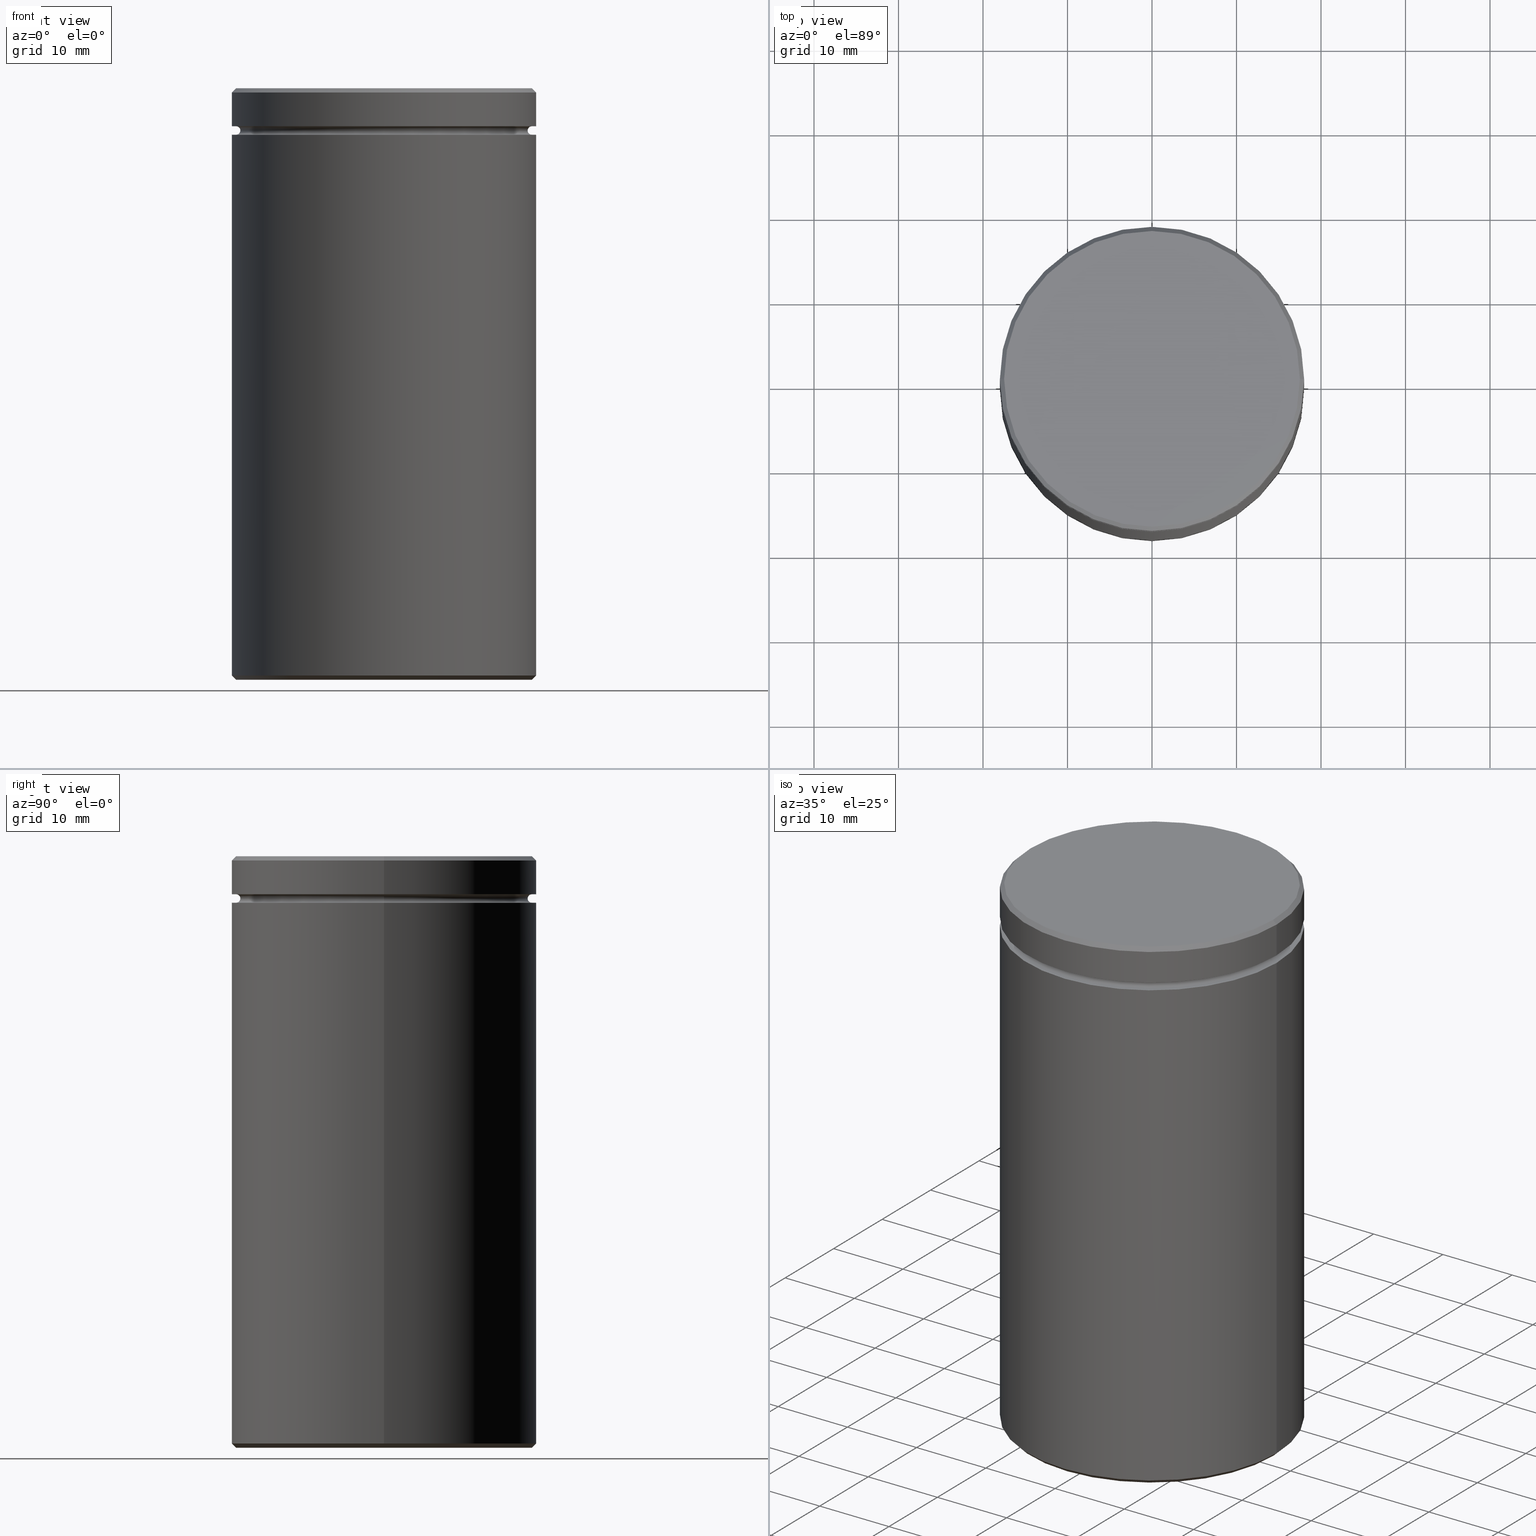
[diagram: canonical four-view strip — front | top / right | iso, engineering-drawing reading convention]
A machine part, canonical four-view strip (front | top / right | iso — engineering-drawing reading convention). The complete STEP part file that produces these views, byte-faithful:
ISO-10303-21;
HEADER;
FILE_DESCRIPTION (( 'STEP AP203' ),
    '1' );
FILE_NAME ('981e.STEP',
    '2024-01-02T17:57:33',
    ( '' ),
    ( '' ),
    'SwSTEP 2.0',
    'SolidWorks 2019',
    '' );
FILE_SCHEMA (( 'CONFIG_CONTROL_DESIGN' ));
ENDSEC;

DATA;
#1 = ORIENTED_EDGE ( 'NONE', *, *, #238, .F. ) ;
#2 = EDGE_LOOP ( 'NONE', ( #20, #502, #546, #164 ) ) ;
#3 = EDGE_CURVE ( 'NONE', #135, #175, #155, .T. ) ;
#4 = CARTESIAN_POINT ( 'NONE',  ( 0.000000000000000000, 0.000000000000000000, -24.00000000000000711 ) ) ;
#5 = CALENDAR_DATE ( 2024, 2, 1 ) ;
#6 = ORIENTED_EDGE ( 'NONE', *, *, #153, .F. ) ;
#7 = CARTESIAN_POINT ( 'NONE',  ( 18.00000000000000000, 0.000000000000000000, -5.500000000000000000 ) ) ;
#8 = CIRCLE ( 'NONE', #511, 12.00000000000000178 ) ;
#9 = APPLICATION_PROTOCOL_DEFINITION ( 'international standard', 'config_control_design', 1994, #12 ) ;
#10 = APPROVAL_PERSON_ORGANIZATION ( #312, #358, #51 ) ;
#11 = PRODUCT ( '981e', '981e', '', ( #533 ) ) ;
#12 = APPLICATION_CONTEXT ( 'configuration controlled 3d designs of mechanical parts and assemblies' ) ;
#13 = ORIENTED_EDGE ( 'NONE', *, *, #373, .F. ) ;
#14 = ORIENTED_EDGE ( 'NONE', *, *, #289, .T. ) ;
#15 = CYLINDRICAL_SURFACE ( 'NONE', #127, 18.00000000000000000 ) ;
#16 = ORIENTED_EDGE ( 'NONE', *, *, #125, .T. ) ;
#17 = FACE_OUTER_BOUND ( 'NONE', #2, .T. ) ;
#18 = EDGE_CURVE ( 'NONE', #568, #175, #247, .T. ) ;
#19 = LINE ( 'NONE', #196, #37 ) ;
#20 = ORIENTED_EDGE ( 'NONE', *, *, #41, .F. ) ;
#21 = AXIS2_PLACEMENT_3D ( 'NONE', #180, #500, #244 ) ;
#22 = APPROVAL_PERSON_ORGANIZATION ( #526, #448, #133 ) ;
#23 = VERTEX_POINT ( 'NONE', #239 ) ;
#24 = CARTESIAN_POINT ( 'NONE',  ( -18.00000000000000000, 2.204364238465235428E-15, -69.50000000000001421 ) ) ;
#25 = ADVANCED_FACE ( 'NONE', ( #415 ), #15, .T. ) ;
#26 = UNCERTAINTY_MEASURE_WITH_UNIT (LENGTH_MEASURE( 1.000000000000000082E-05 ), #435, 'distance_accuracy_value', 'NONE');
#27 = EDGE_LOOP ( 'NONE', ( #321, #308, #227, #87 ) ) ;
#28 = CARTESIAN_POINT ( 'NONE',  ( 0.000000000000000000, 18.00000000000000000, -4.500000000000000888 ) ) ;
#29 = CONICAL_SURFACE ( 'NONE', #231, 17.49999999999998934, 0.7853981633974412846 ) ;
#30 = CONICAL_SURFACE ( 'NONE', #347, 17.49999999999998934, 0.7853981633974412846 ) ;
#31 = ORIENTED_EDGE ( 'NONE', *, *, #289, .F. ) ;
#32 = CARTESIAN_POINT ( 'NONE',  ( 0.000000000000000000, 0.000000000000000000, -69.50000000000001421 ) ) ;
#33 = CARTESIAN_POINT ( 'NONE',  ( 18.00000000000000000, 0.000000000000000000, -69.50000000000001421 ) ) ;
#34 = EDGE_CURVE ( 'NONE', #267, #459, #45, .T. ) ;
#35 = CARTESIAN_POINT ( 'NONE',  ( 16.99999999999999645, 0.000000000000000000, -4.999999999999999112 ) ) ;
#36 = LINE ( 'NONE', #468, #105 ) ;
#37 = VECTOR ( 'NONE', #256, 1000.000000000000000 ) ;
#38 =( GEOMETRIC_REPRESENTATION_CONTEXT ( 3 ) GLOBAL_UNCERTAINTY_ASSIGNED_CONTEXT ( ( #26 ) ) GLOBAL_UNIT_ASSIGNED_CONTEXT ( ( #435, #47, #444 ) ) REPRESENTATION_CONTEXT ( 'NONE', 'WORKASPACE' ) );
#39 = CARTESIAN_POINT ( 'NONE',  ( -18.00000000000000000, 2.204364238465235428E-15, -4.500000000000000888 ) ) ;
#40 = APPROVAL_DATE_TIME ( #357, #358 ) ;
#41 = EDGE_CURVE ( 'NONE', #367, #400, #541, .T. ) ;
#42 = CARTESIAN_POINT ( 'NONE',  ( 0.000000000000000000, 0.000000000000000000, -24.00000000000000711 ) ) ;
#43 = PERSON_AND_ORGANIZATION ( #291, #495 ) ;
#44 = CARTESIAN_POINT ( 'NONE',  ( 0.000000000000000000, 0.000000000000000000, -4.500000000000000888 ) ) ;
#45 = CIRCLE ( 'NONE', #369, 12.00000000000000178 ) ;
#46 = CIRCLE ( 'NONE', #420, 17.49999999999999645 ) ;
#47 =( NAMED_UNIT ( * ) PLANE_ANGLE_UNIT ( ) SI_UNIT ( $, .RADIAN. ) );
#48 = DIRECTION ( 'NONE',  ( -1.000000000000000000, 0.000000000000000000, 0.000000000000000000 ) ) ;
#49 = EDGE_CURVE ( 'NONE', #405, #267, #530, .T. ) ;
#50 = CARTESIAN_POINT ( 'NONE',  ( 0.000000000000000000, 0.000000000000000000, 0.000000000000000000 ) ) ;
#51 = APPROVAL_ROLE ( '' ) ;
#52 = CARTESIAN_POINT ( 'NONE',  ( 17.49999999999999645, 0.000000000000000000, -4.999999999999999112 ) ) ;
#53 = DIRECTION ( 'NONE',  ( 0.000000000000000000, 0.000000000000000000, -1.000000000000000000 ) ) ;
#54 = DATE_AND_TIME ( #317, #413 ) ;
#55 = ORIENTED_EDGE ( 'NONE', *, *, #191, .F. ) ;
#56 = DIRECTION ( 'NONE',  ( -0.000000000000000000, -0.000000000000000000, 1.000000000000000000 ) ) ;
#57 = AXIS2_PLACEMENT_3D ( 'NONE', #483, #226, #356 ) ;
#58 = DIRECTION ( 'NONE',  ( -1.000000000000000000, 0.000000000000000000, 0.000000000000000000 ) ) ;
#59 = ORIENTED_EDGE ( 'NONE', *, *, #327, .F. ) ;
#60 = ADVANCED_FACE ( 'NONE', ( #316 ), #411, .F. ) ;
#61 = FACE_OUTER_BOUND ( 'NONE', #446, .T. ) ;
#62 = FACE_OUTER_BOUND ( 'NONE', #536, .T. ) ;
#63 = CARTESIAN_POINT ( 'NONE',  ( -18.00000000000000000, 2.204364238465235428E-15, 0.000000000000000000 ) ) ;
#64 = AXIS2_PLACEMENT_3D ( 'NONE', #130, #86, #566 ) ;
#65 = APPROVAL_PERSON_ORGANIZATION ( #390, #455, #88 ) ;
#66 = EDGE_CURVE ( 'NONE', #479, #102, #90, .T. ) ;
#67 = DIRECTION ( 'NONE',  ( 0.000000000000000000, 0.000000000000000000, -1.000000000000000000 ) ) ;
#68 = PLANE ( 'NONE',  #550 ) ;
#69 = EDGE_LOOP ( 'NONE', ( #319, #482 ) ) ;
#70 = FACE_OUTER_BOUND ( 'NONE', #330, .T. ) ;
#71 = EDGE_LOOP ( 'NONE', ( #364, #207, #275, #554 ) ) ;
#72 = PLANE ( 'NONE',  #393 ) ;
#73 = CC_DESIGN_DATE_AND_TIME_ASSIGNMENT ( #399, #190, ( #220 ) ) ;
#74 = CIRCLE ( 'NONE', #359, 18.00000000000000000 ) ;
#75 = LOCAL_TIME ( 18, 57, 33.00000000000000000, #354 ) ;
#76 = DIRECTION ( 'NONE',  ( 1.000000000000000000, 0.000000000000000000, 0.000000000000000000 ) ) ;
#77 = ORIENTED_EDGE ( 'NONE', *, *, #18, .T. ) ;
#78 = DIRECTION ( 'NONE',  ( -0.000000000000000000, -0.000000000000000000, 1.000000000000000000 ) ) ;
#79 = ORIENTED_EDGE ( 'NONE', *, *, #366, .T. ) ;
#80 = DIRECTION ( 'NONE',  ( 1.000000000000000000, 0.000000000000000000, 0.000000000000000000 ) ) ;
#81 = CIRCLE ( 'NONE', #376, 0.5000000000000004441 ) ;
#82 = DIRECTION ( 'NONE',  ( 0.000000000000000000, 0.000000000000000000, -1.000000000000000000 ) ) ;
#83 = ADVANCED_FACE ( 'NONE', ( #404 ), #525, .T. ) ;
#84 = LINE ( 'NONE', #33, #532 ) ;
#85 = CYLINDRICAL_SURFACE ( 'NONE', #214, 12.00000000000000178 ) ;
#86 = DIRECTION ( 'NONE',  ( -0.000000000000000000, -1.000000000000000000, -0.000000000000000000 ) ) ;
#87 = ORIENTED_EDGE ( 'NONE', *, *, #313, .F. ) ;
#88 = APPROVAL_ROLE ( '' ) ;
#89 = EDGE_CURVE ( 'NONE', #479, #437, #349, .T. ) ;
#90 = CIRCLE ( 'NONE', #170, 0.5000000000000004441 ) ;
#91 = AXIS2_PLACEMENT_3D ( 'NONE', #374, #381, #548 ) ;
#92 = CARTESIAN_POINT ( 'NONE',  ( 0.000000000000000000, 0.000000000000000000, -0.5000000000000177636 ) ) ;
#93 = PRODUCT_DEFINITION_FORMATION_WITH_SPECIFIED_SOURCE ( 'LIBOVOLN�', '', #11, .NOT_KNOWN. ) ;
#94 = APPROVAL_STATUS ( 'not_yet_approved' ) ;
#95 = ORIENTED_EDGE ( 'NONE', *, *, #389, .T. ) ;
#96 = DIRECTION ( 'NONE',  ( 1.000000000000000000, 0.000000000000000000, 0.000000000000000000 ) ) ;
#97 = VERTEX_POINT ( 'NONE', #243 ) ;
#98 = LINE ( 'NONE', #493, #264 ) ;
#99 = CARTESIAN_POINT ( 'NONE',  ( -17.49999999999998934, 0.000000000000000000, 0.000000000000000000 ) ) ;
#100 = VERTEX_POINT ( 'NONE', #99 ) ;
#101 = CIRCLE ( 'NONE', #419, 18.00000000000000000 ) ;
#102 = VERTEX_POINT ( 'NONE', #199 ) ;
#103 = FACE_OUTER_BOUND ( 'NONE', #187, .T. ) ;
#104 = ADVANCED_FACE ( 'NONE', ( #365, #329 ), #456, .T. ) ;
#105 = VECTOR ( 'NONE', #160, 999.9999999999998863 ) ;
#106 = DIRECTION ( 'NONE',  ( -0.000000000000000000, -0.000000000000000000, 1.000000000000000000 ) ) ;
#107 = AXIS2_PLACEMENT_3D ( 'NONE', #519, #387, #165 ) ;
#108 = DIRECTION ( 'NONE',  ( 1.000000000000000000, 0.000000000000000000, 0.000000000000000000 ) ) ;
#109 = EDGE_CURVE ( 'NONE', #559, #400, #188, .T. ) ;
#110 = CIRCLE ( 'NONE', #91, 0.5000000000000004441 ) ;
#111 = DIRECTION ( 'NONE',  ( -1.000000000000000000, 0.000000000000000000, -0.000000000000000000 ) ) ;
#112 = CYLINDRICAL_SURFACE ( 'NONE', #421, 12.00000000000000178 ) ;
#113 = ORIENTED_EDGE ( 'NONE', *, *, #299, .T. ) ;
#114 = CC_DESIGN_PERSON_AND_ORGANIZATION_ASSIGNMENT ( #186, #351, ( #220 ) ) ;
#115 = VECTOR ( 'NONE', #198, 1000.000000000000000 ) ;
#116 = DIRECTION ( 'NONE',  ( -0.000000000000000000, -0.000000000000000000, 1.000000000000000000 ) ) ;
#117 = VECTOR ( 'NONE', #295, 1000.000000000000000 ) ;
#118 = VERTEX_POINT ( 'NONE', #383 ) ;
#119 = DIRECTION ( 'NONE',  ( -0.000000000000000000, -0.000000000000000000, 1.000000000000000000 ) ) ;
#120 = CARTESIAN_POINT ( 'NONE',  ( 18.00000000000000000, 0.000000000000000000, -69.50000000000001421 ) ) ;
#121 = ORIENTED_EDGE ( 'NONE', *, *, #66, .T. ) ;
#122 = CARTESIAN_POINT ( 'NONE',  ( 0.000000000000000000, 0.000000000000000000, -5.500000000000000000 ) ) ;
#123 = ORIENTED_EDGE ( 'NONE', *, *, #373, .T. ) ;
#124 = DIRECTION ( 'NONE',  ( -1.000000000000000000, 0.000000000000000000, 0.000000000000000000 ) ) ;
#125 = EDGE_CURVE ( 'NONE', #400, #559, #74, .T. ) ;
#126 = CARTESIAN_POINT ( 'NONE',  ( 12.00000000000000178, 1.469576158976824144E-15, -24.00000000000000711 ) ) ;
#127 = AXIS2_PLACEMENT_3D ( 'NONE', #371, #106, #108 ) ;
#128 = CIRCLE ( 'NONE', #332, 17.49999999999998934 ) ;
#129 = AXIS2_PLACEMENT_3D ( 'NONE', #345, #116, #470 ) ;
#130 = CARTESIAN_POINT ( 'NONE',  ( -17.49999999999999645, 0.000000000000000000, -5.000000000000000888 ) ) ;
#131 = VERTEX_POINT ( 'NONE', #560 ) ;
#132 = ADVANCED_FACE ( 'NONE', ( #422 ), #253, .F. ) ;
#133 = APPROVAL_ROLE ( '' ) ;
#134 = DIRECTION ( 'NONE',  ( -1.000000000000000000, -1.224646799147349509E-16, 0.000000000000000000 ) ) ;
#135 = VERTEX_POINT ( 'NONE', #343 ) ;
#136 = DIRECTION ( 'NONE',  ( 1.000000000000000000, 0.000000000000000000, 0.000000000000000000 ) ) ;
#137 = DATE_AND_TIME ( #230, #75 ) ;
#138 = CARTESIAN_POINT ( 'NONE',  ( 0.000000000000000000, 0.000000000000000000, -24.00000000000000711 ) ) ;
#139 = AXIS2_PLACEMENT_3D ( 'NONE', #512, #174, #124 ) ;
#140 = DIRECTION ( 'NONE',  ( -0.000000000000000000, -0.000000000000000000, -1.000000000000000000 ) ) ;
#141 = EDGE_LOOP ( 'NONE', ( #13, #486, #121, #391 ) ) ;
#142 = EDGE_LOOP ( 'NONE', ( #184, #236 ) ) ;
#143 = APPROVAL_DATE_TIME ( #310, #448 ) ;
#144 = CARTESIAN_POINT ( 'NONE',  ( 17.49999999999998934, 2.173748068486550852E-15, 0.000000000000000000 ) ) ;
#145 = ORIENTED_EDGE ( 'NONE', *, *, #407, .T. ) ;
#146 = ADVANCED_FACE ( 'NONE', ( #70 ), #29, .T. ) ;
#147 = EDGE_LOOP ( 'NONE', ( #451, #309, #423, #235 ) ) ;
#148 = CARTESIAN_POINT ( 'NONE',  ( -18.00000000000000000, 2.204364238465235428E-15, -69.50000000000001421 ) ) ;
#149 = AXIS2_PLACEMENT_3D ( 'NONE', #92, #224, #410 ) ;
#150 = AXIS2_PLACEMENT_3D ( 'NONE', #424, #379, #514 ) ;
#151 = DIRECTION ( 'NONE',  ( 0.000000000000000000, 0.000000000000000000, -1.000000000000000000 ) ) ;
#152 = CARTESIAN_POINT ( 'NONE',  ( -17.50000000000000000, 2.173748068486551641E-15, -70.00000000000000000 ) ) ;
#153 = EDGE_CURVE ( 'NONE', #175, #135, #392, .T. ) ;
#154 = DIRECTION ( 'NONE',  ( 0.000000000000000000, 0.000000000000000000, -1.000000000000000000 ) ) ;
#155 = CIRCLE ( 'NONE', #240, 18.00000000000000000 ) ;
#156 = VECTOR ( 'NONE', #183, 1000.000000000000000 ) ;
#157 = CARTESIAN_POINT ( 'NONE',  ( 0.000000000000000000, 0.000000000000000000, -69.50000000000001421 ) ) ;
#158 = EDGE_LOOP ( 'NONE', ( #440, #113, #14, #537 ) ) ;
#159 = DIRECTION ( 'NONE',  ( 0.000000000000000000, 0.000000000000000000, -1.000000000000000000 ) ) ;
#160 = DIRECTION ( 'NONE',  ( -0.7071067811865425767, 0.000000000000000000, -0.7071067811865525687 ) ) ;
#161 = ORIENTED_EDGE ( 'NONE', *, *, #489, .T. ) ;
#162 = EDGE_CURVE ( 'NONE', #405, #262, #484, .T. ) ;
#163 = CARTESIAN_POINT ( 'NONE',  ( 0.000000000000000000, 0.000000000000000000, 0.000000000000000000 ) ) ;
#164 = ORIENTED_EDGE ( 'NONE', *, *, #125, .F. ) ;
#165 = DIRECTION ( 'NONE',  ( 1.000000000000000000, 0.000000000000000000, 0.000000000000000000 ) ) ;
#166 = DIRECTION ( 'NONE',  ( -0.000000000000000000, -0.000000000000000000, 1.000000000000000000 ) ) ;
#167 = CARTESIAN_POINT ( 'NONE',  ( -18.00000000000000000, 2.204364238465235428E-15, 0.000000000000000000 ) ) ;
#168 = VERTEX_POINT ( 'NONE', #144 ) ;
#169 = DIRECTION ( 'NONE',  ( 1.000000000000000000, 0.000000000000000000, 0.000000000000000000 ) ) ;
#170 = AXIS2_PLACEMENT_3D ( 'NONE', #52, #380, #251 ) ;
#171 = CARTESIAN_POINT ( 'NONE',  ( 0.000000000000000000, 0.000000000000000000, -0.5000000000000177636 ) ) ;
#172 = FACE_OUTER_BOUND ( 'NONE', #252, .T. ) ;
#173 = ADVANCED_FACE ( 'NONE', ( #498, #62 ), #68, .T. ) ;
#174 = DIRECTION ( 'NONE',  ( -0.000000000000000000, -0.000000000000000000, 1.000000000000000000 ) ) ;
#175 = VERTEX_POINT ( 'NONE', #438 ) ;
#176 = ORIENTED_EDGE ( 'NONE', *, *, #481, .F. ) ;
#177 = FACE_OUTER_BOUND ( 'NONE', #531, .T. ) ;
#178 = DIRECTION ( 'NONE',  ( 0.000000000000000000, 0.000000000000000000, -1.000000000000000000 ) ) ;
#179 = CIRCLE ( 'NONE', #139, 17.49999999999999645 ) ;
#180 = CARTESIAN_POINT ( 'NONE',  ( 0.000000000000000000, 0.000000000000000000, -5.500000000000000000 ) ) ;
#181 = DIRECTION ( 'NONE',  ( 1.000000000000000000, 0.000000000000000000, 0.000000000000000000 ) ) ;
#182 = ORIENTED_EDGE ( 'NONE', *, *, #481, .T. ) ;
#183 = DIRECTION ( 'NONE',  ( -0.000000000000000000, -0.000000000000000000, 1.000000000000000000 ) ) ;
#184 = ORIENTED_EDGE ( 'NONE', *, *, #564, .T. ) ;
#185 = CYLINDRICAL_SURFACE ( 'NONE', #557, 18.00000000000000000 ) ;
#186 = PERSON_AND_ORGANIZATION ( #291, #495 ) ;
#187 = EDGE_LOOP ( 'NONE', ( #222, #77, #397, #59 ) ) ;
#188 = CIRCLE ( 'NONE', #473, 18.00000000000000000 ) ;
#189 = EDGE_LOOP ( 'NONE', ( #290, #443 ) ) ;
#190 = DATE_TIME_ROLE ( 'creation_date' ) ;
#191 = EDGE_CURVE ( 'NONE', #168, #135, #98, .T. ) ;
#192 = ORIENTED_EDGE ( 'NONE', *, *, #204, .T. ) ;
#193 = VECTOR ( 'NONE', #140, 1000.000000000000000 ) ;
#194 = CC_DESIGN_PERSON_AND_ORGANIZATION_ASSIGNMENT ( #43, #223, ( #11 ) ) ;
#195 = CIRCLE ( 'NONE', #278, 17.50000000000000000 ) ;
#196 = CARTESIAN_POINT ( 'NONE',  ( 18.00000000000000000, 0.000000000000000000, 0.000000000000000000 ) ) ;
#197 = AXIS2_PLACEMENT_3D ( 'NONE', #428, #562, #211 ) ;
#198 = DIRECTION ( 'NONE',  ( -0.7071067811865549002, 8.659560562355022838E-17, 0.7071067811865401342 ) ) ;
#199 = CARTESIAN_POINT ( 'NONE',  ( 17.49999999999999645, 0.000000000000000000, -5.500000000000000000 ) ) ;
#200 = CARTESIAN_POINT ( 'NONE',  ( -12.00000000000000178, 0.000000000000000000, -24.00000000000000711 ) ) ;
#201 = ORIENTED_EDGE ( 'NONE', *, *, #3, .T. ) ;
#202 = CIRCLE ( 'NONE', #370, 12.00000000000000178 ) ;
#203 = DIRECTION ( 'NONE',  ( 0.000000000000000000, 0.000000000000000000, -1.000000000000000000 ) ) ;
#204 = EDGE_CURVE ( 'NONE', #559, #205, #395, .T. ) ;
#205 = VERTEX_POINT ( 'NONE', #7 ) ;
#206 = CARTESIAN_POINT ( 'NONE',  ( 0.000000000000000000, 18.00000000000000000, -70.00000000000000000 ) ) ;
#207 = ORIENTED_EDGE ( 'NONE', *, *, #41, .T. ) ;
#208 = APPLICATION_CONTEXT ( 'configuration controlled 3d designs of mechanical parts and assemblies' ) ;
#209 = ADVANCED_BREP_SHAPE_REPRESENTATION ( '981e', ( #333, #254 ), #38 ) ;
#210 = ORIENTED_EDGE ( 'NONE', *, *, #162, .F. ) ;
#211 = DIRECTION ( 'NONE',  ( 1.000000000000000000, 0.000000000000000000, 0.000000000000000000 ) ) ;
#212 = ADVANCED_FACE ( 'NONE', ( #17 ), #296, .T. ) ;
#213 = FACE_OUTER_BOUND ( 'NONE', #271, .T. ) ;
#214 = AXIS2_PLACEMENT_3D ( 'NONE', #42, #217, #285 ) ;
#215 = DIRECTION ( 'NONE',  ( -1.000000000000000000, 0.000000000000000000, 0.000000000000000000 ) ) ;
#216 = SHAPE_DEFINITION_REPRESENTATION ( #496, #209 ) ;
#217 = DIRECTION ( 'NONE',  ( -0.000000000000000000, -0.000000000000000000, -1.000000000000000000 ) ) ;
#218 = CARTESIAN_POINT ( 'NONE',  ( 0.000000000000000000, 0.000000000000000000, 0.000000000000000000 ) ) ;
#219 = TOROIDAL_SURFACE ( 'NONE', #431, 17.49999999999999645, 0.5000000000000000000 ) ;
#220 = PRODUCT_DEFINITION ( 'NEZN�M�', '', #93, #284 ) ;
#221 = LOCAL_TIME ( 18, 57, 33.00000000000000000, #539 ) ;
#222 = ORIENTED_EDGE ( 'NONE', *, *, #497, .T. ) ;
#223 = PERSON_AND_ORGANIZATION_ROLE ( 'design_owner' ) ;
#224 = DIRECTION ( 'NONE',  ( 0.000000000000000000, 0.000000000000000000, -1.000000000000000000 ) ) ;
#225 = ORIENTED_EDGE ( 'NONE', *, *, #549, .T. ) ;
#226 = DIRECTION ( 'NONE',  ( -0.000000000000000000, -0.000000000000000000, 1.000000000000000000 ) ) ;
#227 = ORIENTED_EDGE ( 'NONE', *, *, #249, .F. ) ;
#228 = DIRECTION ( 'NONE',  ( -1.000000000000000000, 0.000000000000000000, 0.000000000000000000 ) ) ;
#229 = ADVANCED_FACE ( 'NONE', ( #103 ), #185, .T. ) ;
#230 = CALENDAR_DATE ( 2024, 2, 1 ) ;
#231 = AXIS2_PLACEMENT_3D ( 'NONE', #163, #246, #215 ) ;
#232 = CARTESIAN_POINT ( 'NONE',  ( -12.00000000000000178, 0.000000000000000000, -24.00000000000000711 ) ) ;
#233 = ORIENTED_EDGE ( 'NONE', *, *, #299, .F. ) ;
#234 = CARTESIAN_POINT ( 'NONE',  ( 12.00000000000000178, 1.469576158976824144E-15, -24.00000000000000711 ) ) ;
#235 = ORIENTED_EDGE ( 'NONE', *, *, #204, .F. ) ;
#236 = ORIENTED_EDGE ( 'NONE', *, *, #542, .T. ) ;
#237 = DIRECTION ( 'NONE',  ( 1.000000000000000000, 0.000000000000000000, 0.000000000000000000 ) ) ;
#238 = EDGE_CURVE ( 'NONE', #437, #479, #501, .T. ) ;
#239 = CARTESIAN_POINT ( 'NONE',  ( -17.49999999999999645, 2.143131898507867854E-15, -5.500000000000000000 ) ) ;
#240 = AXIS2_PLACEMENT_3D ( 'NONE', #171, #178, #521 ) ;
#241 = AXIS2_PLACEMENT_3D ( 'NONE', #352, #276, #441 ) ;
#242 = CIRCLE ( 'NONE', #439, 18.00000000000000000 ) ;
#243 = CARTESIAN_POINT ( 'NONE',  ( 17.49999999999999645, 2.143131898507867854E-15, -4.500000000000000888 ) ) ;
#244 = DIRECTION ( 'NONE',  ( 1.000000000000000000, 0.000000000000000000, 0.000000000000000000 ) ) ;
#245 = DIRECTION ( 'NONE',  ( -0.000000000000000000, -0.000000000000000000, 1.000000000000000000 ) ) ;
#246 = DIRECTION ( 'NONE',  ( 0.000000000000000000, 0.000000000000000000, -1.000000000000000000 ) ) ;
#247 = LINE ( 'NONE', #63, #337 ) ;
#248 = DIRECTION ( 'NONE',  ( 0.000000000000000000, 0.000000000000000000, -1.000000000000000000 ) ) ;
#249 = EDGE_CURVE ( 'NONE', #527, #97, #465, .T. ) ;
#250 = CARTESIAN_POINT ( 'NONE',  ( 0.000000000000000000, 16.99999999999999645, -5.500000000000000000 ) ) ;
#251 = DIRECTION ( 'NONE',  ( 0.000000000000000000, 0.000000000000000000, -1.000000000000000000 ) ) ;
#252 = EDGE_LOOP ( 'NONE', ( #416, #79, #384, #201 ) ) ;
#253 = TOROIDAL_SURFACE ( 'NONE', #449, 17.49999999999999645, 0.5000000000000000000 ) ;
#254 = AXIS2_PLACEMENT_3D ( 'NONE', #218, #402, #181 ) ;
#255 = DIRECTION ( 'NONE',  ( 1.000000000000000000, 0.000000000000000000, 0.000000000000000000 ) ) ;
#256 = DIRECTION ( 'NONE',  ( -0.000000000000000000, -0.000000000000000000, 1.000000000000000000 ) ) ;
#257 = ORIENTED_EDGE ( 'NONE', *, *, #549, .F. ) ;
#258 = CARTESIAN_POINT ( 'NONE',  ( -17.49999999999999645, 0.000000000000000000, -4.500000000000000888 ) ) ;
#259 = ORIENTED_EDGE ( 'NONE', *, *, #3, .F. ) ;
#260 = EDGE_CURVE ( 'NONE', #100, #168, #128, .T. ) ;
#261 = PLANE ( 'NONE',  #520 ) ;
#262 = VERTEX_POINT ( 'NONE', #234 ) ;
#263 = FACE_OUTER_BOUND ( 'NONE', #417, .T. ) ;
#264 = VECTOR ( 'NONE', #487, 999.9999999999998863 ) ;
#265 = PERSON_AND_ORGANIZATION_ROLE ( 'classification_officer' ) ;
#266 = ADVANCED_FACE ( 'NONE', ( #273 ), #219, .F. ) ;
#267 = VERTEX_POINT ( 'NONE', #401 ) ;
#268 = DIRECTION ( 'NONE',  ( 1.000000000000000000, 0.000000000000000000, 0.000000000000000000 ) ) ;
#269 = COORDINATED_UNIVERSAL_TIME_OFFSET ( 1, 0, .AHEAD. ) ;
#270 = CIRCLE ( 'NONE', #197, 17.49999999999999645 ) ;
#271 = EDGE_LOOP ( 'NONE', ( #363, #161 ) ) ;
#272 = CC_DESIGN_PERSON_AND_ORGANIZATION_ASSIGNMENT ( #396, #265, ( #279 ) ) ;
#273 = FACE_OUTER_BOUND ( 'NONE', #293, .T. ) ;
#274 = PERSON_AND_ORGANIZATION_ROLE ( 'design_supplier' ) ;
#275 = ORIENTED_EDGE ( 'NONE', *, *, #109, .F. ) ;
#276 = DIRECTION ( 'NONE',  ( -0.000000000000000000, -0.000000000000000000, 1.000000000000000000 ) ) ;
#277 = DIRECTION ( 'NONE',  ( -0.000000000000000000, -0.000000000000000000, 1.000000000000000000 ) ) ;
#278 = AXIS2_PLACEMENT_3D ( 'NONE', #547, #445, #300 ) ;
#279 = SECURITY_CLASSIFICATION ( '', '', #348 ) ;
#280 = EDGE_LOOP ( 'NONE', ( #513, #145 ) ) ;
#281 = DIRECTION ( 'NONE',  ( -0.000000000000000000, -0.000000000000000000, 1.000000000000000000 ) ) ;
#282 = DIRECTION ( 'NONE',  ( -1.000000000000000000, 0.000000000000000000, 0.000000000000000000 ) ) ;
#283 = CARTESIAN_POINT ( 'NONE',  ( 0.000000000000000000, 0.000000000000000000, -70.00000000000000000 ) ) ;
#284 = DESIGN_CONTEXT ( 'detailed design', #208, 'design' ) ;
#285 = DIRECTION ( 'NONE',  ( -1.000000000000000000, 0.000000000000000000, 0.000000000000000000 ) ) ;
#286 = CIRCLE ( 'NONE', #64, 0.5000000000000004441 ) ;
#287 = CIRCLE ( 'NONE', #107, 18.00000000000000000 ) ;
#288 = DIRECTION ( 'NONE',  ( -1.000000000000000000, 0.000000000000000000, 0.000000000000000000 ) ) ;
#289 = EDGE_CURVE ( 'NONE', #459, #267, #202, .T. ) ;
#290 = ORIENTED_EDGE ( 'NONE', *, *, #162, .T. ) ;
#291 = PERSON ( 'NEUR�EN�', 'NEUR�EN�', 'NEUR�EN�', ('NEUR�EN�'), ('NEUR�EN�'), ('NEUR�EN�') ) ;
#292 = CARTESIAN_POINT ( 'NONE',  ( 0.000000000000000000, 0.000000000000000000, -5.000000000000000888 ) ) ;
#293 = EDGE_LOOP ( 'NONE', ( #342, #492, #524, #311 ) ) ;
#294 = CARTESIAN_POINT ( 'NONE',  ( 0.000000000000000000, 0.000000000000000000, -24.00000000000000711 ) ) ;
#295 = DIRECTION ( 'NONE',  ( -0.000000000000000000, -0.000000000000000000, -1.000000000000000000 ) ) ;
#296 = CONICAL_SURFACE ( 'NONE', #241, 18.00000000000000000, 0.7853981633974587151 ) ;
#297 = CC_DESIGN_APPROVAL ( #358, ( #279 ) ) ;
#298 = CARTESIAN_POINT ( 'NONE',  ( 12.00000000000000178, 1.469576158976824144E-15, -70.00000000000000000 ) ) ;
#299 = EDGE_CURVE ( 'NONE', #262, #459, #504, .T. ) ;
#300 = DIRECTION ( 'NONE',  ( -1.000000000000000000, 0.000000000000000000, 0.000000000000000000 ) ) ;
#301 = DIRECTION ( 'NONE',  ( -1.000000000000000000, 0.000000000000000000, 0.000000000000000000 ) ) ;
#302 = DIRECTION ( 'NONE',  ( 0.000000000000000000, 0.000000000000000000, -1.000000000000000000 ) ) ;
#303 = EDGE_LOOP ( 'NONE', ( #233, #210, #507, #517 ) ) ;
#304 = DIRECTION ( 'NONE',  ( -1.000000000000000000, 0.000000000000000000, 0.000000000000000000 ) ) ;
#305 = CYLINDRICAL_SURFACE ( 'NONE', #129, 18.00000000000000000 ) ;
#306 = EDGE_CURVE ( 'NONE', #262, #405, #8, .T. ) ;
#307 = APPROVAL_STATUS ( 'not_yet_approved' ) ;
#308 = ORIENTED_EDGE ( 'NONE', *, *, #331, .T. ) ;
#309 = ORIENTED_EDGE ( 'NONE', *, *, #414, .T. ) ;
#310 = DATE_AND_TIME ( #442, #325 ) ;
#311 = ORIENTED_EDGE ( 'NONE', *, *, #389, .F. ) ;
#312 = PERSON_AND_ORGANIZATION ( #291, #495 ) ;
#313 = EDGE_CURVE ( 'NONE', #437, #527, #286, .T. ) ;
#314 = AXIS2_PLACEMENT_3D ( 'NONE', #447, #528, #136 ) ;
#315 = CC_DESIGN_APPROVAL ( #455, ( #93 ) ) ;
#316 = FACE_OUTER_BOUND ( 'NONE', #141, .T. ) ;
#317 = CALENDAR_DATE ( 2024, 2, 1 ) ;
#318 = PRODUCT_RELATED_PRODUCT_CATEGORY ( 'detail', '', ( #11 ) ) ;
#319 = ORIENTED_EDGE ( 'NONE', *, *, #497, .F. ) ;
#320 = CARTESIAN_POINT ( 'NONE',  ( 0.000000000000000000, 0.000000000000000000, -4.999999999999999112 ) ) ;
#321 = ORIENTED_EDGE ( 'NONE', *, *, #238, .T. ) ;
#322 = PERSON_AND_ORGANIZATION_ROLE ( 'creator' ) ;
#323 = ORIENTED_EDGE ( 'NONE', *, *, #564, .F. ) ;
#324 = AXIS2_PLACEMENT_3D ( 'NONE', #4, #538, #545 ) ;
#325 = LOCAL_TIME ( 18, 57, 33.00000000000000000, #491 ) ;
#326 = ORIENTED_EDGE ( 'NONE', *, *, #66, .F. ) ;
#327 = EDGE_CURVE ( 'NONE', #131, #135, #19, .T. ) ;
#328 = DIRECTION ( 'NONE',  ( -1.000000000000000000, 0.000000000000000000, 0.000000000000000000 ) ) ;
#329 = FACE_BOUND ( 'NONE', #355, .T. ) ;
#330 = EDGE_LOOP ( 'NONE', ( #540, #338, #6, #176 ) ) ;
#331 = EDGE_CURVE ( 'NONE', #479, #97, #81, .T. ) ;
#332 = AXIS2_PLACEMENT_3D ( 'NONE', #398, #56, #237 ) ;
#333 = MANIFOLD_SOLID_BREP ( 'Zaoblit1', #464 ) ;
#334 = CARTESIAN_POINT ( 'NONE',  ( -16.99999999999999645, 2.112515728529184067E-15, -4.999999999999999112 ) ) ;
#335 = ADVANCED_FACE ( 'NONE', ( #477 ), #85, .F. ) ;
#336 = FACE_BOUND ( 'NONE', #505, .T. ) ;
#337 = VECTOR ( 'NONE', #277, 1000.000000000000000 ) ;
#338 = ORIENTED_EDGE ( 'NONE', *, *, #191, .T. ) ;
#339 = CIRCLE ( 'NONE', #412, 17.50000000000000000 ) ;
#340 = CC_DESIGN_APPROVAL ( #448, ( #220 ) ) ;
#341 = DIRECTION ( 'NONE',  ( -1.000000000000000000, 0.000000000000000000, -0.000000000000000000 ) ) ;
#342 = ORIENTED_EDGE ( 'NONE', *, *, #331, .F. ) ;
#343 = CARTESIAN_POINT ( 'NONE',  ( 18.00000000000000000, 0.000000000000000000, -0.5000000000000177636 ) ) ;
#344 = CYLINDRICAL_SURFACE ( 'NONE', #450, 18.00000000000000000 ) ;
#345 = CARTESIAN_POINT ( 'NONE',  ( 0.000000000000000000, 0.000000000000000000, 0.000000000000000000 ) ) ;
#346 = EDGE_CURVE ( 'NONE', #118, #367, #195, .T. ) ;
#347 = AXIS2_PLACEMENT_3D ( 'NONE', #499, #159, #282 ) ;
#348 = SECURITY_CLASSIFICATION_LEVEL ( 'unclassified' ) ;
#349 = CIRCLE ( 'NONE', #544, 16.99999999999999645 ) ;
#350 = AXIS2_PLACEMENT_3D ( 'NONE', #563, #78, #553 ) ;
#351 = PERSON_AND_ORGANIZATION_ROLE ( 'creator' ) ;
#352 = CARTESIAN_POINT ( 'NONE',  ( 0.000000000000000000, 0.000000000000000000, -69.50000000000001421 ) ) ;
#353 = ADVANCED_FACE ( 'NONE', ( #61 ), #30, .T. ) ;
#354 = COORDINATED_UNIVERSAL_TIME_OFFSET ( 1, 0, .AHEAD. ) ;
#355 = EDGE_LOOP ( 'NONE', ( #427, #31 ) ) ;
#356 = DIRECTION ( 'NONE',  ( -1.000000000000000000, 0.000000000000000000, 0.000000000000000000 ) ) ;
#357 = DATE_AND_TIME ( #5, #221 ) ;
#358 = APPROVAL ( #94, 'NEUR�EN�' ) ;
#359 = AXIS2_PLACEMENT_3D ( 'NONE', #157, #516, #301 ) ;
#360 = LOCAL_TIME ( 18, 57, 33.00000000000000000, #478 ) ;
#361 = VERTEX_POINT ( 'NONE', #508 ) ;
#362 = APPROVAL_STATUS ( 'not_yet_approved' ) ;
#363 = ORIENTED_EDGE ( 'NONE', *, *, #260, .T. ) ;
#364 = ORIENTED_EDGE ( 'NONE', *, *, #407, .F. ) ;
#365 = FACE_OUTER_BOUND ( 'NONE', #280, .T. ) ;
#366 = EDGE_CURVE ( 'NONE', #568, #131, #101, .T. ) ;
#367 = VERTEX_POINT ( 'NONE', #152 ) ;
#368 = CARTESIAN_POINT ( 'NONE',  ( 0.000000000000000000, 0.000000000000000000, -5.000000000000000888 ) ) ;
#369 = AXIS2_PLACEMENT_3D ( 'NONE', #283, #154, #58 ) ;
#370 = AXIS2_PLACEMENT_3D ( 'NONE', #406, #452, #543 ) ;
#371 = CARTESIAN_POINT ( 'NONE',  ( 0.000000000000000000, 0.000000000000000000, 0.000000000000000000 ) ) ;
#372 = DIRECTION ( 'NONE',  ( -1.224646799147353207E-16, 1.000000000000000000, 0.000000000000000000 ) ) ;
#373 = EDGE_CURVE ( 'NONE', #437, #23, #110, .T. ) ;
#374 = CARTESIAN_POINT ( 'NONE',  ( -17.49999999999999645, 2.143131898507867854E-15, -4.999999999999999112 ) ) ;
#375 = CARTESIAN_POINT ( 'NONE',  ( 0.000000000000000000, 0.000000000000000000, -70.00000000000000000 ) ) ;
#376 = AXIS2_PLACEMENT_3D ( 'NONE', #460, #372, #134 ) ;
#377 = DIRECTION ( 'NONE',  ( 0.000000000000000000, -0.000000000000000000, 1.000000000000000000 ) ) ;
#378 = CARTESIAN_POINT ( 'NONE',  ( 0.000000000000000000, 0.000000000000000000, 0.000000000000000000 ) ) ;
#379 = DIRECTION ( 'NONE',  ( -0.000000000000000000, -0.000000000000000000, 1.000000000000000000 ) ) ;
#380 = DIRECTION ( 'NONE',  ( 0.000000000000000000, -1.000000000000000000, 0.000000000000000000 ) ) ;
#381 = DIRECTION ( 'NONE',  ( 1.224646799147353207E-16, 1.000000000000000000, 0.000000000000000000 ) ) ;
#382 = CARTESIAN_POINT ( 'NONE',  ( 0.000000000000000000, 0.000000000000000000, -4.500000000000000888 ) ) ;
#383 = CARTESIAN_POINT ( 'NONE',  ( 17.50000000000000000, 0.000000000000000000, -70.00000000000000000 ) ) ;
#384 = ORIENTED_EDGE ( 'NONE', *, *, #327, .T. ) ;
#385 = VECTOR ( 'NONE', #119, 1000.000000000000000 ) ;
#386 = CC_DESIGN_SECURITY_CLASSIFICATION ( #279, ( #93 ) ) ;
#387 = DIRECTION ( 'NONE',  ( -0.000000000000000000, -0.000000000000000000, 1.000000000000000000 ) ) ;
#388 = DIRECTION ( 'NONE',  ( -0.000000000000000000, -0.000000000000000000, -1.000000000000000000 ) ) ;
#389 = EDGE_CURVE ( 'NONE', #97, #527, #179, .T. ) ;
#390 = PERSON_AND_ORGANIZATION ( #291, #495 ) ;
#391 = ORIENTED_EDGE ( 'NONE', *, *, #542, .F. ) ;
#392 = CIRCLE ( 'NONE', #149, 18.00000000000000000 ) ;
#393 = AXIS2_PLACEMENT_3D ( 'NONE', #28, #203, #341 ) ;
#394 = EDGE_CURVE ( 'NONE', #205, #361, #565, .T. ) ;
#395 = LINE ( 'NONE', #569, #156 ) ;
#396 = PERSON_AND_ORGANIZATION ( #291, #495 ) ;
#397 = ORIENTED_EDGE ( 'NONE', *, *, #153, .T. ) ;
#398 = CARTESIAN_POINT ( 'NONE',  ( 0.000000000000000000, 0.000000000000000000, 0.000000000000000000 ) ) ;
#399 = DATE_AND_TIME ( #480, #360 ) ;
#400 = VERTEX_POINT ( 'NONE', #24 ) ;
#401 = CARTESIAN_POINT ( 'NONE',  ( -12.00000000000000178, 0.000000000000000000, -70.00000000000000000 ) ) ;
#402 = DIRECTION ( 'NONE',  ( 0.000000000000000000, 0.000000000000000000, 1.000000000000000000 ) ) ;
#403 = AXIS2_PLACEMENT_3D ( 'NONE', #138, #151, #328 ) ;
#404 = FACE_OUTER_BOUND ( 'NONE', #189, .T. ) ;
#405 = VERTEX_POINT ( 'NONE', #200 ) ;
#406 = CARTESIAN_POINT ( 'NONE',  ( 0.000000000000000000, 0.000000000000000000, -70.00000000000000000 ) ) ;
#407 = EDGE_CURVE ( 'NONE', #367, #118, #339, .T. ) ;
#408 = ORIENTED_EDGE ( 'NONE', *, *, #249, .T. ) ;
#409 = DIRECTION ( 'NONE',  ( -0.000000000000000000, -0.000000000000000000, 1.000000000000000000 ) ) ;
#410 = DIRECTION ( 'NONE',  ( 1.000000000000000000, 0.000000000000000000, 0.000000000000000000 ) ) ;
#411 = TOROIDAL_SURFACE ( 'NONE', #510, 17.49999999999999645, 0.5000000000000000000 ) ;
#412 = AXIS2_PLACEMENT_3D ( 'NONE', #375, #432, #561 ) ;
#413 = LOCAL_TIME ( 18, 57, 33.00000000000000000, #269 ) ;
#414 = EDGE_CURVE ( 'NONE', #400, #361, #474, .T. ) ;
#415 = FACE_OUTER_BOUND ( 'NONE', #147, .T. ) ;
#416 = ORIENTED_EDGE ( 'NONE', *, *, #18, .F. ) ;
#417 = EDGE_LOOP ( 'NONE', ( #457, #16, #192, #257 ) ) ;
#418 = FACE_OUTER_BOUND ( 'NONE', #71, .T. ) ;
#419 = AXIS2_PLACEMENT_3D ( 'NONE', #44, #469, #434 ) ;
#420 = AXIS2_PLACEMENT_3D ( 'NONE', #122, #302, #80 ) ;
#421 = AXIS2_PLACEMENT_3D ( 'NONE', #294, #388, #304 ) ;
#422 = FACE_OUTER_BOUND ( 'NONE', #27, .T. ) ;
#423 = ORIENTED_EDGE ( 'NONE', *, *, #394, .F. ) ;
#424 = CARTESIAN_POINT ( 'NONE',  ( 0.000000000000000000, 0.000000000000000000, -4.999999999999999112 ) ) ;
#425 = ADVANCED_FACE ( 'NONE', ( #506 ), #112, .F. ) ;
#426 = ORIENTED_EDGE ( 'NONE', *, *, #260, .F. ) ;
#427 = ORIENTED_EDGE ( 'NONE', *, *, #34, .F. ) ;
#428 = CARTESIAN_POINT ( 'NONE',  ( 0.000000000000000000, 0.000000000000000000, -5.500000000000000000 ) ) ;
#429 = DIRECTION ( 'NONE',  ( -0.000000000000000000, -0.000000000000000000, 1.000000000000000000 ) ) ;
#430 = EDGE_CURVE ( 'NONE', #118, #559, #84, .T. ) ;
#431 = AXIS2_PLACEMENT_3D ( 'NONE', #368, #53, #228 ) ;
#432 = DIRECTION ( 'NONE',  ( 0.000000000000000000, 0.000000000000000000, -1.000000000000000000 ) ) ;
#433 = DIRECTION ( 'NONE',  ( 0.000000000000000000, -0.000000000000000000, 1.000000000000000000 ) ) ;
#434 = DIRECTION ( 'NONE',  ( 1.000000000000000000, 0.000000000000000000, 0.000000000000000000 ) ) ;
#435 =( LENGTH_UNIT ( ) NAMED_UNIT ( * ) SI_UNIT ( .MILLI., .METRE. ) );
#436 = ADVANCED_FACE ( 'NONE', ( #263 ), #305, .T. ) ;
#437 = VERTEX_POINT ( 'NONE', #334 ) ;
#438 = CARTESIAN_POINT ( 'NONE',  ( -18.00000000000000000, 2.204364238465235428E-15, -0.5000000000000177636 ) ) ;
#439 = AXIS2_PLACEMENT_3D ( 'NONE', #382, #429, #463 ) ;
#440 = ORIENTED_EDGE ( 'NONE', *, *, #306, .F. ) ;
#441 = DIRECTION ( 'NONE',  ( 1.000000000000000000, 0.000000000000000000, 0.000000000000000000 ) ) ;
#442 = CALENDAR_DATE ( 2024, 2, 1 ) ;
#443 = ORIENTED_EDGE ( 'NONE', *, *, #306, .T. ) ;
#444 =( NAMED_UNIT ( * ) SI_UNIT ( $, .STERADIAN. ) SOLID_ANGLE_UNIT ( ) );
#445 = DIRECTION ( 'NONE',  ( 0.000000000000000000, 0.000000000000000000, -1.000000000000000000 ) ) ;
#446 = EDGE_LOOP ( 'NONE', ( #55, #426, #182, #259 ) ) ;
#447 = CARTESIAN_POINT ( 'NONE',  ( 0.000000000000000000, 0.000000000000000000, -4.999999999999999112 ) ) ;
#448 = APPROVAL ( #307, 'NEUR�EN�' ) ;
#449 = AXIS2_PLACEMENT_3D ( 'NONE', #292, #67, #461 ) ;
#450 = AXIS2_PLACEMENT_3D ( 'NONE', #518, #556, #169 ) ;
#451 = ORIENTED_EDGE ( 'NONE', *, *, #109, .T. ) ;
#452 = DIRECTION ( 'NONE',  ( 0.000000000000000000, 0.000000000000000000, -1.000000000000000000 ) ) ;
#453 = DIRECTION ( 'NONE',  ( 1.000000000000000000, 0.000000000000000000, 0.000000000000000000 ) ) ;
#454 = CC_DESIGN_DATE_AND_TIME_ASSIGNMENT ( #137, #522, ( #279 ) ) ;
#455 = APPROVAL ( #362, 'NEUR�EN�' ) ;
#456 = PLANE ( 'NONE',  #494 ) ;
#457 = ORIENTED_EDGE ( 'NONE', *, *, #414, .F. ) ;
#458 = DIRECTION ( 'NONE',  ( 1.000000000000000000, 0.000000000000000000, 0.000000000000000000 ) ) ;
#459 = VERTEX_POINT ( 'NONE', #298 ) ;
#460 = CARTESIAN_POINT ( 'NONE',  ( 17.49999999999999645, 2.143131898507867854E-15, -5.000000000000000888 ) ) ;
#461 = DIRECTION ( 'NONE',  ( -1.000000000000000000, 0.000000000000000000, 0.000000000000000000 ) ) ;
#462 = ADVANCED_FACE ( 'NONE', ( #418 ), #534, .T. ) ;
#463 = DIRECTION ( 'NONE',  ( 1.000000000000000000, 0.000000000000000000, 0.000000000000000000 ) ) ;
#464 = CLOSED_SHELL ( 'NONE', ( #132, #535, #462, #146, #425, #25, #229, #104, #523, #555, #503, #173, #436, #335, #83, #353, #212, #60, #266 ) ) ;
#465 = CIRCLE ( 'NONE', #57, 17.49999999999999645 ) ;
#466 = TOROIDAL_SURFACE ( 'NONE', #150, 17.49999999999999645, 0.5000000000000000000 ) ;
#467 = CARTESIAN_POINT ( 'NONE',  ( 0.000000000000000000, 0.000000000000000000, -24.00000000000000711 ) ) ;
#468 = CARTESIAN_POINT ( 'NONE',  ( -17.49999999999998934, 0.000000000000000000, 0.000000000000000000 ) ) ;
#469 = DIRECTION ( 'NONE',  ( -0.000000000000000000, -0.000000000000000000, 1.000000000000000000 ) ) ;
#470 = DIRECTION ( 'NONE',  ( 1.000000000000000000, 0.000000000000000000, 0.000000000000000000 ) ) ;
#471 = CC_DESIGN_PERSON_AND_ORGANIZATION_ASSIGNMENT ( #485, #274, ( #93 ) ) ;
#472 = DIRECTION ( 'NONE',  ( -0.000000000000000000, -0.000000000000000000, 1.000000000000000000 ) ) ;
#473 = AXIS2_PLACEMENT_3D ( 'NONE', #32, #166, #288 ) ;
#474 = LINE ( 'NONE', #167, #385 ) ;
#475 = AXIS2_PLACEMENT_3D ( 'NONE', #476, #472, #76 ) ;
#476 = CARTESIAN_POINT ( 'NONE',  ( 0.000000000000000000, 0.000000000000000000, 0.000000000000000000 ) ) ;
#477 = FACE_OUTER_BOUND ( 'NONE', #303, .T. ) ;
#478 = COORDINATED_UNIVERSAL_TIME_OFFSET ( 1, 0, .AHEAD. ) ;
#479 = VERTEX_POINT ( 'NONE', #35 ) ;
#480 = CALENDAR_DATE ( 2024, 2, 1 ) ;
#481 = EDGE_CURVE ( 'NONE', #100, #175, #36, .T. ) ;
#482 = ORIENTED_EDGE ( 'NONE', *, *, #366, .F. ) ;
#483 = CARTESIAN_POINT ( 'NONE',  ( 0.000000000000000000, 0.000000000000000000, -4.500000000000000888 ) ) ;
#484 = CIRCLE ( 'NONE', #403, 12.00000000000000178 ) ;
#485 = PERSON_AND_ORGANIZATION ( #291, #495 ) ;
#486 = ORIENTED_EDGE ( 'NONE', *, *, #89, .F. ) ;
#487 = DIRECTION ( 'NONE',  ( 0.7071067811865425767, 8.659560562354873694E-17, -0.7071067811865525687 ) ) ;
#488 = PERSON_AND_ORGANIZATION ( #291, #495 ) ;
#489 = EDGE_CURVE ( 'NONE', #168, #100, #558, .T. ) ;
#490 = CARTESIAN_POINT ( 'NONE',  ( 0.000000000000000000, 0.000000000000000000, -4.999999999999999112 ) ) ;
#491 = COORDINATED_UNIVERSAL_TIME_OFFSET ( 1, 0, .AHEAD. ) ;
#492 = ORIENTED_EDGE ( 'NONE', *, *, #89, .T. ) ;
#493 = CARTESIAN_POINT ( 'NONE',  ( 17.49999999999998934, 2.143131898507866276E-15, 0.000000000000000000 ) ) ;
#494 = AXIS2_PLACEMENT_3D ( 'NONE', #206, #248, #111 ) ;
#495 = ORGANIZATION ( 'NEUR�EN�', 'NEUR�EN�', '' ) ;
#496 = PRODUCT_DEFINITION_SHAPE ( 'NONE', 'NONE',  #220 ) ;
#497 = EDGE_CURVE ( 'NONE', #131, #568, #242, .T. ) ;
#498 = FACE_BOUND ( 'NONE', #142, .T. ) ;
#499 = CARTESIAN_POINT ( 'NONE',  ( 0.000000000000000000, 0.000000000000000000, 0.000000000000000000 ) ) ;
#500 = DIRECTION ( 'NONE',  ( -0.000000000000000000, -0.000000000000000000, 1.000000000000000000 ) ) ;
#501 = CIRCLE ( 'NONE', #314, 16.99999999999999645 ) ;
#502 = ORIENTED_EDGE ( 'NONE', *, *, #346, .F. ) ;
#503 = ADVANCED_FACE ( 'NONE', ( #336, #552 ), #72, .T. ) ;
#504 = LINE ( 'NONE', #126, #117 ) ;
#505 = EDGE_LOOP ( 'NONE', ( #408, #95 ) ) ;
#506 = FACE_OUTER_BOUND ( 'NONE', #158, .T. ) ;
#507 = ORIENTED_EDGE ( 'NONE', *, *, #49, .T. ) ;
#508 = CARTESIAN_POINT ( 'NONE',  ( -18.00000000000000000, 2.204364238465235428E-15, -5.500000000000000000 ) ) ;
#509 = DIRECTION ( 'NONE',  ( 0.7071067811865549002, 0.000000000000000000, 0.7071067811865401342 ) ) ;
#510 = AXIS2_PLACEMENT_3D ( 'NONE', #320, #245, #458 ) ;
#511 = AXIS2_PLACEMENT_3D ( 'NONE', #467, #82, #48 ) ;
#512 = CARTESIAN_POINT ( 'NONE',  ( 0.000000000000000000, 0.000000000000000000, -4.500000000000000888 ) ) ;
#513 = ORIENTED_EDGE ( 'NONE', *, *, #346, .T. ) ;
#514 = DIRECTION ( 'NONE',  ( 1.000000000000000000, 0.000000000000000000, 0.000000000000000000 ) ) ;
#515 = CC_DESIGN_PERSON_AND_ORGANIZATION_ASSIGNMENT ( #488, #322, ( #93 ) ) ;
#516 = DIRECTION ( 'NONE',  ( -0.000000000000000000, -0.000000000000000000, 1.000000000000000000 ) ) ;
#517 = ORIENTED_EDGE ( 'NONE', *, *, #34, .T. ) ;
#518 = CARTESIAN_POINT ( 'NONE',  ( 0.000000000000000000, 0.000000000000000000, 0.000000000000000000 ) ) ;
#519 = CARTESIAN_POINT ( 'NONE',  ( 0.000000000000000000, 0.000000000000000000, -5.500000000000000000 ) ) ;
#520 = AXIS2_PLACEMENT_3D ( 'NONE', #378, #433, #255 ) ;
#521 = DIRECTION ( 'NONE',  ( 1.000000000000000000, 0.000000000000000000, 0.000000000000000000 ) ) ;
#522 = DATE_TIME_ROLE ( 'classification_date' ) ;
#523 = ADVANCED_FACE ( 'NONE', ( #213 ), #261, .T. ) ;
#524 = ORIENTED_EDGE ( 'NONE', *, *, #313, .T. ) ;
#525 = PLANE ( 'NONE',  #324 ) ;
#526 = PERSON_AND_ORGANIZATION ( #291, #495 ) ;
#527 = VERTEX_POINT ( 'NONE', #258 ) ;
#528 = DIRECTION ( 'NONE',  ( -0.000000000000000000, -0.000000000000000000, 1.000000000000000000 ) ) ;
#529 = APPROVAL_DATE_TIME ( #54, #455 ) ;
#530 = LINE ( 'NONE', #232, #193 ) ;
#531 = EDGE_LOOP ( 'NONE', ( #1, #123, #323, #326 ) ) ;
#532 = VECTOR ( 'NONE', #509, 1000.000000000000000 ) ;
#533 = MECHANICAL_CONTEXT ( 'NONE', #12, 'mechanical' ) ;
#534 = CONICAL_SURFACE ( 'NONE', #350, 18.00000000000000000, 0.7853981633974587151 ) ;
#535 = ADVANCED_FACE ( 'NONE', ( #177 ), #466, .F. ) ;
#536 = EDGE_LOOP ( 'NONE', ( #551, #225 ) ) ;
#537 = ORIENTED_EDGE ( 'NONE', *, *, #49, .F. ) ;
#538 = DIRECTION ( 'NONE',  ( 0.000000000000000000, 0.000000000000000000, -1.000000000000000000 ) ) ;
#539 = COORDINATED_UNIVERSAL_TIME_OFFSET ( 1, 0, .AHEAD. ) ;
#540 = ORIENTED_EDGE ( 'NONE', *, *, #489, .F. ) ;
#541 = LINE ( 'NONE', #148, #115 ) ;
#542 = EDGE_CURVE ( 'NONE', #23, #102, #270, .T. ) ;
#543 = DIRECTION ( 'NONE',  ( -1.000000000000000000, 0.000000000000000000, 0.000000000000000000 ) ) ;
#544 = AXIS2_PLACEMENT_3D ( 'NONE', #490, #281, #453 ) ;
#545 = DIRECTION ( 'NONE',  ( -1.000000000000000000, 0.000000000000000000, -0.000000000000000000 ) ) ;
#546 = ORIENTED_EDGE ( 'NONE', *, *, #430, .T. ) ;
#547 = CARTESIAN_POINT ( 'NONE',  ( 0.000000000000000000, 0.000000000000000000, -70.00000000000000000 ) ) ;
#548 = DIRECTION ( 'NONE',  ( -1.000000000000000000, 1.224646799147349509E-16, 0.000000000000000000 ) ) ;
#549 = EDGE_CURVE ( 'NONE', #361, #205, #287, .T. ) ;
#550 = AXIS2_PLACEMENT_3D ( 'NONE', #250, #377, #268 ) ;
#551 = ORIENTED_EDGE ( 'NONE', *, *, #394, .T. ) ;
#552 = FACE_OUTER_BOUND ( 'NONE', #69, .T. ) ;
#553 = DIRECTION ( 'NONE',  ( 1.000000000000000000, 0.000000000000000000, 0.000000000000000000 ) ) ;
#554 = ORIENTED_EDGE ( 'NONE', *, *, #430, .F. ) ;
#555 = ADVANCED_FACE ( 'NONE', ( #172 ), #344, .T. ) ;
#556 = DIRECTION ( 'NONE',  ( -0.000000000000000000, -0.000000000000000000, 1.000000000000000000 ) ) ;
#557 = AXIS2_PLACEMENT_3D ( 'NONE', #50, #409, #96 ) ;
#558 = CIRCLE ( 'NONE', #475, 17.49999999999998934 ) ;
#559 = VERTEX_POINT ( 'NONE', #120 ) ;
#560 = CARTESIAN_POINT ( 'NONE',  ( 18.00000000000000000, 0.000000000000000000, -4.500000000000000888 ) ) ;
#561 = DIRECTION ( 'NONE',  ( -1.000000000000000000, 0.000000000000000000, 0.000000000000000000 ) ) ;
#562 = DIRECTION ( 'NONE',  ( 0.000000000000000000, 0.000000000000000000, -1.000000000000000000 ) ) ;
#563 = CARTESIAN_POINT ( 'NONE',  ( 0.000000000000000000, 0.000000000000000000, -69.50000000000001421 ) ) ;
#564 = EDGE_CURVE ( 'NONE', #102, #23, #46, .T. ) ;
#565 = CIRCLE ( 'NONE', #21, 18.00000000000000000 ) ;
#566 = DIRECTION ( 'NONE',  ( 0.000000000000000000, 0.000000000000000000, -1.000000000000000000 ) ) ;
#567 = APPLICATION_PROTOCOL_DEFINITION ( 'international standard', 'config_control_design', 1994, #208 ) ;
#568 = VERTEX_POINT ( 'NONE', #39 ) ;
#569 = CARTESIAN_POINT ( 'NONE',  ( 18.00000000000000000, 0.000000000000000000, 0.000000000000000000 ) ) ;
ENDSEC;
END-ISO-10303-21;
